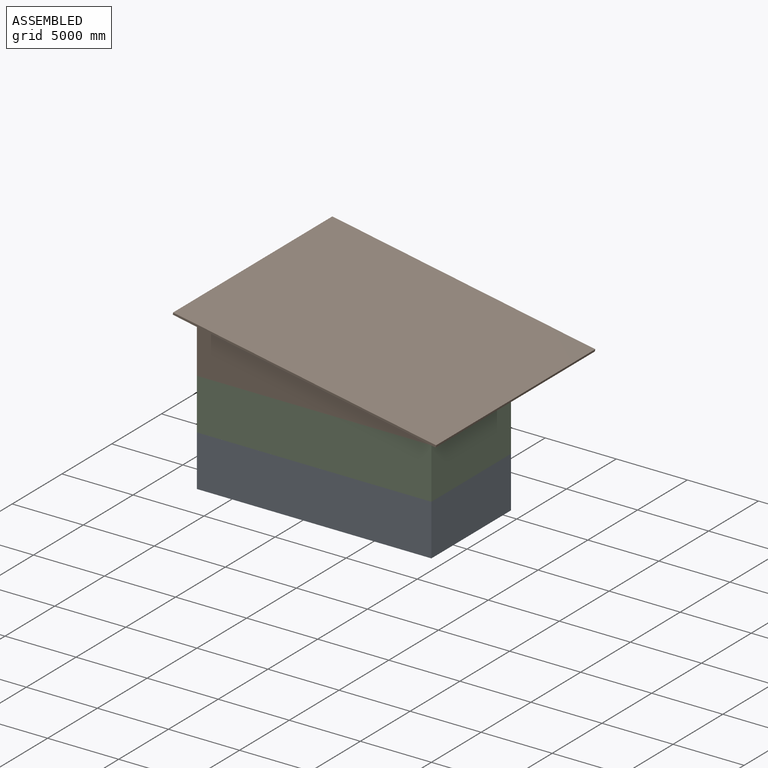
[diagram: assembled view]
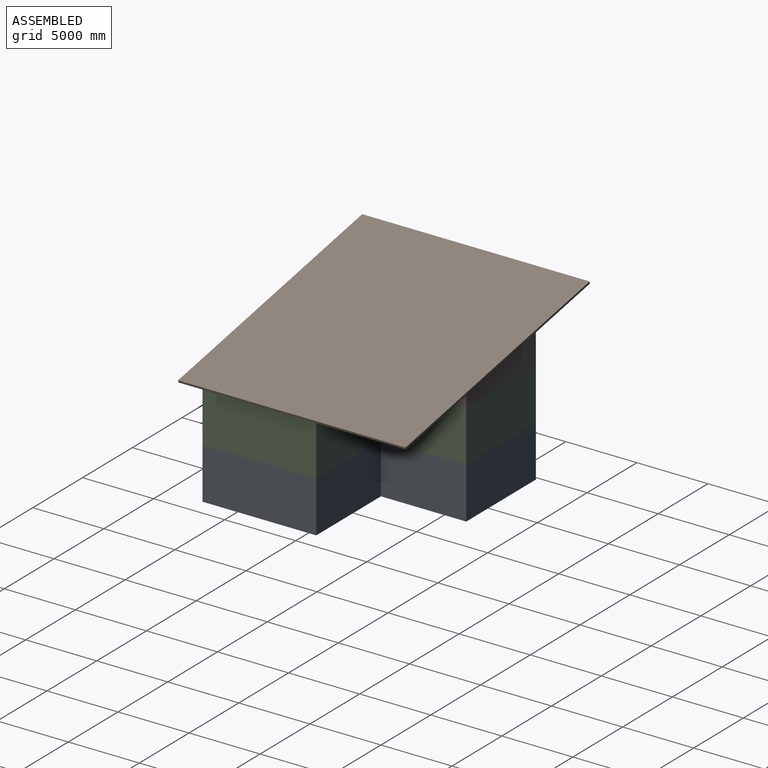
[diagram: assembled view, second angle]
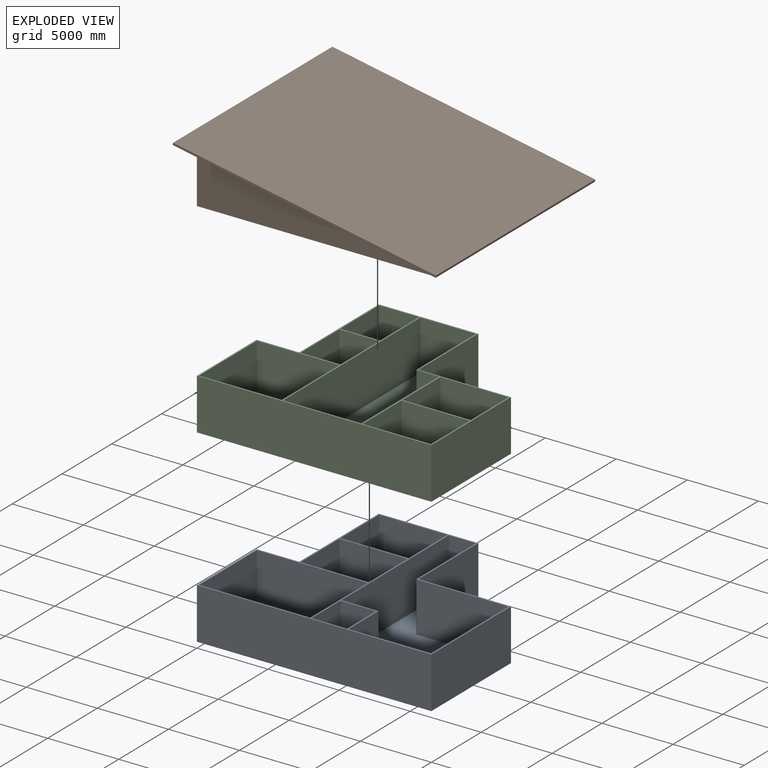
[diagram: exploded view]
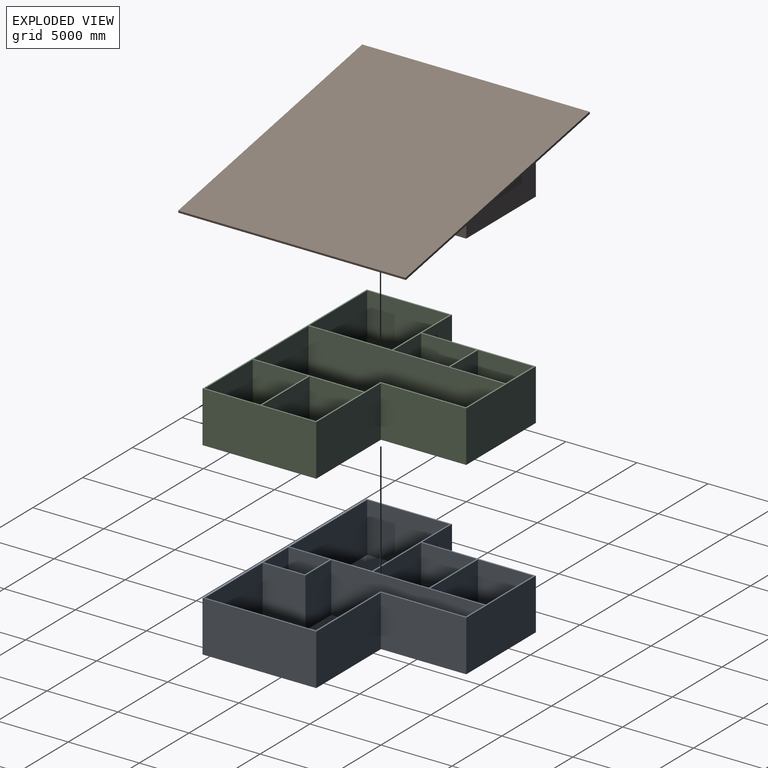
[diagram: exploded view, second angle]
ASSEMBLY  parts=3 mates=2
PART A: 39 faces, bbox 16500x14000x3600 mm
  f0: plane 8000x3600mm, normal (-1,0,0), area 28800000mm2, adj f1,f7,f8,f33
  f1: plane 3600x3000mm, normal (0,1,0), area 10800000mm2, adj f0,f2,f8,f33
  f2: plane 6000x3600mm, normal (-1,0,0), area 21600000mm2, adj f1,f3,f8,f33
  f3: plane 16500x3600mm, normal (0,-1,0), area 59400000mm2, adj f2,f4,f8,f33
  f4: plane 8000x3600mm, normal (1,0,0), area 28800000mm2, adj f3,f5,f8,f33
  f5: plane 6500x3600mm, normal (0,1,0), area 23400000mm2, adj f4,f6,f8,f33
  f6: plane 6000x3600mm, normal (1,0,0), area 21600000mm2, adj f5,f7,f8,f33
  f7: plane 7000x3600mm, normal (0,1,0), area 25200000mm2, adj f0,f6,f8,f33
  f8: plane 16500x14000mm, normal (0,0,-1), area 168000000mm2, adj f0,f1,f2,f3,f4,f5,f6,f7
  f9: plane 3900x3500mm, normal (-1,0,0), area 13650000mm2, adj f10,f32,f33,f34
  f10: plane 4800x3500mm, normal (0,1,0), area 16800000mm2, adj f9,f11,f33,f34
  f11: plane 3900x3500mm, normal (1,0,0), area 13650000mm2, adj f10,f32,f33,f34
  f12: plane 7800x3500mm, normal (0,1,0), area 27300000mm2, adj f13,f28,f33,f38
  f13: plane 5800x3500mm, normal (1,0,0), area 20300000mm2, adj f12,f14,f33,f38
  f14: plane 7800x3500mm, normal (0,-1,0), area 27300000mm2, adj f13,f28,f33,f38
  f15: plane 4800x3500mm, normal (0,1,0), area 16800000mm2, adj f16,f29,f33,f37
  f16: plane 3900x3500mm, normal (1,0,0), area 13650000mm2, adj f15,f17,f33,f37
  f17: plane 4800x3500mm, normal (0,-1,0), area 16800000mm2, adj f16,f29,f33,f37
  f18: plane 3500x2900mm, normal (-1,0,0), area 10150000mm2, adj f19,f30,f33,f36
  f19: plane 3500x2500mm, normal (0,1,0), area 8750000mm2, adj f18,f20,f33,f36
  f20: plane 3500x2900mm, normal (1,0,0), area 10150000mm2, adj f19,f30,f33,f36
  f21: plane 3500x1900mm, normal (0,-1,0), area 6650000mm2, adj f22,f31,f33,f35
  f22: plane 6000x3500mm, normal (-1,0,0), area 21000000mm2, adj f21,f23,f33,f35
  f23: plane 6500x3500mm, normal (0,-1,0), area 22750000mm2, adj f22,f24,f33,f35
  f24: plane 7800x3500mm, normal (-1,0,0), area 27300000mm2, adj f23,f25,f33,f35
  f25: plane 5800x3500mm, normal (0,1,0), area 20300000mm2, adj f24,f26,f33,f35
  f26: plane 3500x3000mm, normal (1,0,0), area 10500000mm2, adj f25,f27,f33,f35
  f27: plane 3500x2600mm, normal (0,1,0), area 9100000mm2, adj f26,f31,f33,f35
  f28: plane 5800x3500mm, normal (-1,0,0), area 20300000mm2, adj f12,f14,f33,f38
  f29: plane 3900x3500mm, normal (-1,0,0), area 13650000mm2, adj f15,f17,f33,f37
  f30: plane 3500x2500mm, normal (0,-1,0), area 8750000mm2, adj f18,f20,f33,f36
  f31: plane 10800x3500mm, normal (1,0,0), area 37800000mm2, adj f21,f27,f33,f35
  f32: plane 4800x3500mm, normal (0,-1,0), area 16800000mm2, adj f9,f11,f33,f34
  f33: plane 16500x14000mm, normal (0,0,1), area 8950000mm2, adj f0,f1,f2,f3,f4,f5,f6,f7
  f34: plane 4800x3900mm, normal (0,0,1), area 18720000mm2, adj f9,f10,f11,f32
  f35: plane 13800x8400mm, normal (0,0,1), area 69120000mm2, adj f21,f22,f23,f24,f25,f26,f27,f31
  f36: plane 2900x2500mm, normal (0,0,1), area 7250000mm2, adj f18,f19,f20,f30
  f37: plane 4800x3900mm, normal (0,0,1), area 18720000mm2, adj f15,f16,f17,f29
  f38: plane 7800x5800mm, normal (0,0,1), area 45240000mm2, adj f12,f13,f14,f28
PART B: 47 faces, bbox 18527.9x16000x4147.4 mm
  f0: plane 16000x147.39mm, normal (-0.98,0,0.19), area 2400000mm2, adj f1,f3,f4,f5
  f1: plane 18527.88x3647.39mm, normal (0,-1,0), area 2824225.6mm2, adj f0,f2,f4,f5
  f2: plane 16000x147.39mm, normal (0.98,0,-0.19), area 2400000mm2, adj f1,f3,f4,f5
  f3: plane 18527.88x3647.39mm, normal (0,1,0), area 2824225.6mm2, adj f0,f2,f4,f5
  f4: plane 18500x16000mm, normal (0.19,0,0.98), area 301250726.1mm2, adj f0,f1,f2,f3
  f5: plane 18500x16000mm, normal (-0.19,0,-0.98), area 130270584.3mm2, adj f0,f1,f2,f3,f26,f27,f28,f29
  f6: plane 4800x1616.22mm, normal (0,-1,0), area 5578378.4mm2, adj f7,f39,f40,f41
  f7: plane 3900x708.11mm, normal (-1,0,0), area 2761621.6mm2, adj f6,f8,f40,f41
  f8: plane 4800x1616.22mm, normal (0,1,0), area 5578378.4mm2, adj f7,f39,f40,f41
  f9: plane 3800x1616.22mm, normal (1,0,0), area 6141621.6mm2, adj f10,f33,f40,f46
  f10: plane 4800x1616.22mm, normal (0,-1,0), area 5578378.4mm2, adj f9,f11,f40,f46
  f11: plane 3800x708.11mm, normal (-1,0,0), area 2690810.8mm2, adj f10,f33,f40,f46
  f12: plane 5800x3791.89mm, normal (0,1,0), area 18810810.8mm2, adj f13,f34,f40,f45
  f13: plane 5800x3791.89mm, normal (1,0,0), area 21992973mm2, adj f12,f14,f40,f45
  f14: plane 5800x3791.89mm, normal (0,-1,0), area 18810810.8mm2, adj f13,f34,f40,f45
  f15: plane 5500x2675.68mm, normal (0,1,0), area 11854729.7mm2, adj f16,f35,f40,f44
  f16: plane 13800x2675.68mm, normal (1,0,0), area 36924324.3mm2, adj f15,f17,f40,f44
  f17: plane 3900x2675.68mm, normal (0,-1,0), area 8996351.4mm2, adj f16,f18,f40,f44
  f18: plane 6000x1937.84mm, normal (-1,0,0), area 11627027mm2, adj f17,f19,f40,f44
  f19: plane 1937.84x1600mm, normal (0,-1,0), area 2858378.4mm2, adj f18,f35,f40,f44
  f20: plane 3224.32x2800mm, normal (0,1,0), area 8286486.5mm2, adj f21,f36,f40,f43
  f21: plane 3900x3224.32mm, normal (1,0,0), area 12574864.9mm2, adj f20,f22,f40,f43
  f22: plane 3224.32x2800mm, normal (0,-1,0), area 8286486.5mm2, adj f21,f36,f40,f43
  f23: plane 3224.32x2800mm, normal (0,1,0), area 8286486.5mm2, adj f24,f37,f40,f42
  f24: plane 3900x3224.32mm, normal (1,0,0), area 12574864.9mm2, adj f23,f25,f40,f42
  f25: plane 3224.32x2800mm, normal (0,-1,0), area 8286486.5mm2, adj f24,f37,f40,f42
  f26: plane 8000x3243.24mm, normal (-1,0,0), area 25945945.9mm2, adj f5,f27,f38,f40
  f27: plane 3810.81x3000mm, normal (0,1,0), area 10581081.1mm2, adj f5,f26,f28,f40
  f28: plane 6000x3810.81mm, normal (-1,0,0), area 22864864.9mm2, adj f5,f27,f29,f40
  f29: plane 16500x3810.81mm, normal (0,-1,0), area 37125000mm2, adj f5,f28,f30,f40
  f30: plane 8000x689.19mm, normal (1,0,0), area 5513513.5mm2, adj f5,f29,f31,f40
  f31: plane 6500x1918.92mm, normal (0,1,0), area 8476351.3mm2, adj f5,f30,f32,f40
  f32: plane 6000x1918.92mm, normal (1,0,0), area 11513513.5mm2, adj f5,f31,f38,f40
  f33: plane 4800x1616.22mm, normal (0,1,0), area 5578378.4mm2, adj f9,f11,f40,f46
  f34: plane 5800x2694.59mm, normal (-1,0,0), area 15628648.7mm2, adj f12,f14,f40,f45
  f35: plane 7800x1635.14mm, normal (-1,0,0), area 12754054.1mm2, adj f15,f19,f40,f44
  f36: plane 3900x2694.59mm, normal (-1,0,0), area 10508918.9mm2, adj f20,f22,f40,f43
  f37: plane 3900x2694.59mm, normal (-1,0,0), area 10508918.9mm2, adj f23,f25,f40,f42
  f38: plane 7000x3243.24mm, normal (0,1,0), area 18067567.6mm2, adj f5,f26,f32,f40
  f39: plane 3900x1616.22mm, normal (1,0,0), area 6303243.2mm2, adj f6,f8,f40,f41
  f40: plane 16500x14000mm, normal (0,0,-1), area 9260000mm2, adj f6,f7,f8,f9,f10,f11,f12,f13
  f41: plane 4800x3900mm, normal (-0.19,0,-0.98), area 19052073mm2, adj f6,f7,f8,f39
  f42: plane 3900x2800mm, normal (-0.19,0,-0.98), area 11113709.2mm2, adj f23,f24,f25,f37
  f43: plane 3900x2800mm, normal (-0.19,0,-0.98), area 11113709.2mm2, adj f20,f21,f22,f36
  f44: plane 13800x5500mm, normal (-0.19,0,-0.98), area 67476091.7mm2, adj f15,f16,f17,f18,f19,f35
  f45: plane 5800x5800mm, normal (-0.19,0,-0.98), area 34236737.9mm2, adj f12,f13,f14,f34
  f46: plane 4800x3800mm, normal (-0.19,0,-0.98), area 18563558.3mm2, adj f9,f10,f11,f33
PART C: 44 faces, bbox 16500x14000x3600 mm
  f0: plane 13800x5500mm, normal (0,0,1), area 62300000mm2, adj f10,f11,f12,f13,f23,f24,f25,f34
  f1: plane 16500x14000mm, normal (0,0,-1), area 164000000mm2, adj f2,f3,f4,f5,f6,f7,f8,f9
  f2: plane 8000x3600mm, normal (-1,0,0), area 28800000mm2, adj f1,f3,f9,f38
  f3: plane 3600x3000mm, normal (0,1,0), area 10800000mm2, adj f1,f2,f4,f38
  f4: plane 6000x3600mm, normal (-1,0,0), area 21600000mm2, adj f1,f3,f5,f38
  f5: plane 16500x3600mm, normal (0,-1,0), area 59400000mm2, adj f1,f4,f6,f38
  f6: plane 8000x3600mm, normal (1,0,0), area 28800000mm2, adj f1,f5,f7,f38
  f7: plane 6500x3600mm, normal (0,1,0), area 23400000mm2, adj f1,f6,f8,f38
  f8: plane 6000x3600mm, normal (1,0,0), area 21600000mm2, adj f1,f7,f9,f38
  f9: plane 7000x3600mm, normal (0,1,0), area 25200000mm2, adj f1,f2,f8,f38
  f10: plane 1000x100mm, normal (0,1,0), area 100000mm2, adj f0,f1,f11,f13
  f11: plane 6000x3600mm, normal (-1,0,0), area 21400000mm2, adj f0,f1,f10,f12,f25,f38
  f12: plane 3900x3600mm, normal (0,-1,0), area 13750000mm2, adj f0,f1,f11,f13,f24,f38
  f13: plane 4000x100mm, normal (1,0,0), area 400000mm2, adj f0,f1,f10,f12
  f14: plane 4800x3500mm, normal (0,-1,0), area 16800000mm2, adj f15,f37,f38,f43
  f15: plane 3900x3500mm, normal (-1,0,0), area 13650000mm2, adj f14,f16,f38,f43
  f16: plane 4800x3500mm, normal (0,1,0), area 16800000mm2, adj f15,f37,f38,f43
  f17: plane 3800x3500mm, normal (1,0,0), area 13300000mm2, adj f18,f32,f38,f42
  f18: plane 4800x3500mm, normal (0,-1,0), area 16800000mm2, adj f17,f19,f38,f42
  f19: plane 3800x3500mm, normal (-1,0,0), area 13300000mm2, adj f18,f32,f38,f42
  f20: plane 5800x3500mm, normal (0,1,0), area 20300000mm2, adj f21,f33,f38,f41
  f21: plane 5800x3500mm, normal (1,0,0), area 20300000mm2, adj f20,f22,f38,f41
  f22: plane 5800x3500mm, normal (0,-1,0), area 20300000mm2, adj f21,f33,f38,f41
  f23: plane 5500x3500mm, normal (0,1,0), area 19250000mm2, adj f0,f24,f34,f38
  f24: plane 13800x3500mm, normal (1,0,0), area 48300000mm2, adj f0,f12,f23,f38
  f25: plane 3500x1600mm, normal (0,-1,0), area 5600000mm2, adj f0,f11,f34,f38
  f26: plane 3500x2800mm, normal (0,1,0), area 9800000mm2, adj f27,f35,f38,f40
  f27: plane 3900x3500mm, normal (1,0,0), area 13650000mm2, adj f26,f28,f38,f40
  f28: plane 3500x2800mm, normal (0,-1,0), area 9800000mm2, adj f27,f35,f38,f40
  f29: plane 3500x2800mm, normal (0,1,0), area 9800000mm2, adj f30,f36,f38,f39
  f30: plane 3900x3500mm, normal (1,0,0), area 13650000mm2, adj f29,f31,f38,f39
  f31: plane 3500x2800mm, normal (0,-1,0), area 9800000mm2, adj f30,f36,f38,f39
  f32: plane 4800x3500mm, normal (0,1,0), area 16800000mm2, adj f17,f19,f38,f42
  f33: plane 5800x3500mm, normal (-1,0,0), area 20300000mm2, adj f20,f22,f38,f41
  f34: plane 7800x3500mm, normal (-1,0,0), area 27300000mm2, adj f0,f23,f25,f38
  f35: plane 3900x3500mm, normal (-1,0,0), area 13650000mm2, adj f26,f28,f38,f40
  f36: plane 3900x3500mm, normal (-1,0,0), area 13650000mm2, adj f29,f31,f38,f39
  f37: plane 3900x3500mm, normal (1,0,0), area 13650000mm2, adj f14,f16,f38,f43
  f38: plane 16500x14000mm, normal (0,0,1), area 9260000mm2, adj f2,f3,f4,f5,f6,f7,f8,f9
  f39: plane 3900x2800mm, normal (0,0,1), area 10920000mm2, adj f29,f30,f31,f36
  f40: plane 3900x2800mm, normal (0,0,1), area 10920000mm2, adj f26,f27,f28,f35
  f41: plane 5800x5800mm, normal (0,0,1), area 33640000mm2, adj f20,f21,f22,f33
  f42: plane 4800x3800mm, normal (0,0,1), area 18240000mm2, adj f17,f18,f19,f32
  f43: plane 4800x3900mm, normal (0,0,1), area 18720000mm2, adj f14,f15,f16,f37
PLACE A t=(8000,0,100)mm
PLACE B t=(8000,0,100)mm
PLACE C t=(8000,0,100)mm
MATE fastened C.f1 <-> A.f33  axis (0,0,1) through (0,0,3600)mm
MATE fastened B.f40 <-> C.f38  axis (0,0,1) through (0,0,7200)mm
